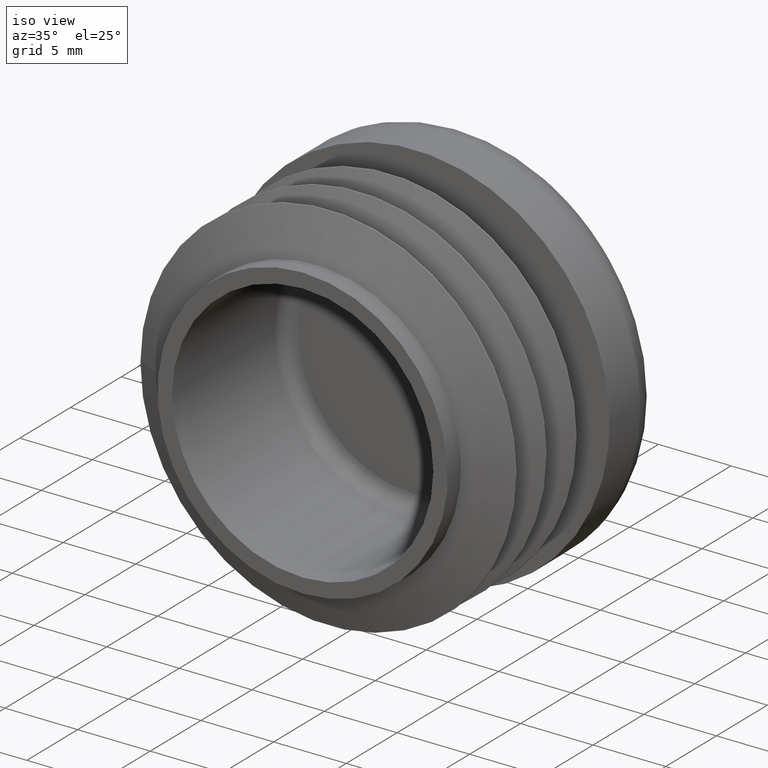
[diagram: clean part render]
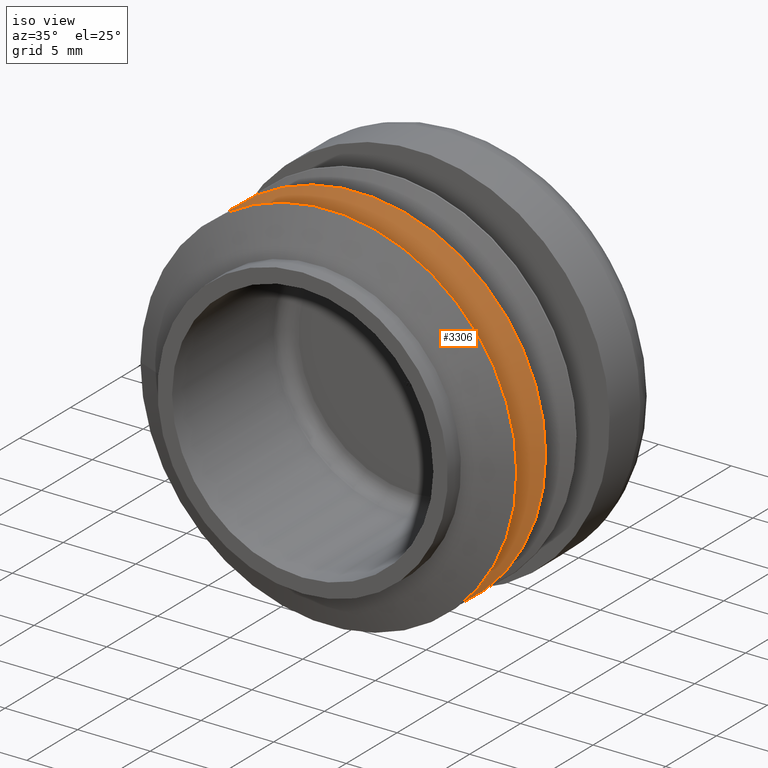
[diagram: same view with one face highlighted and labeled with its STEP entity id]
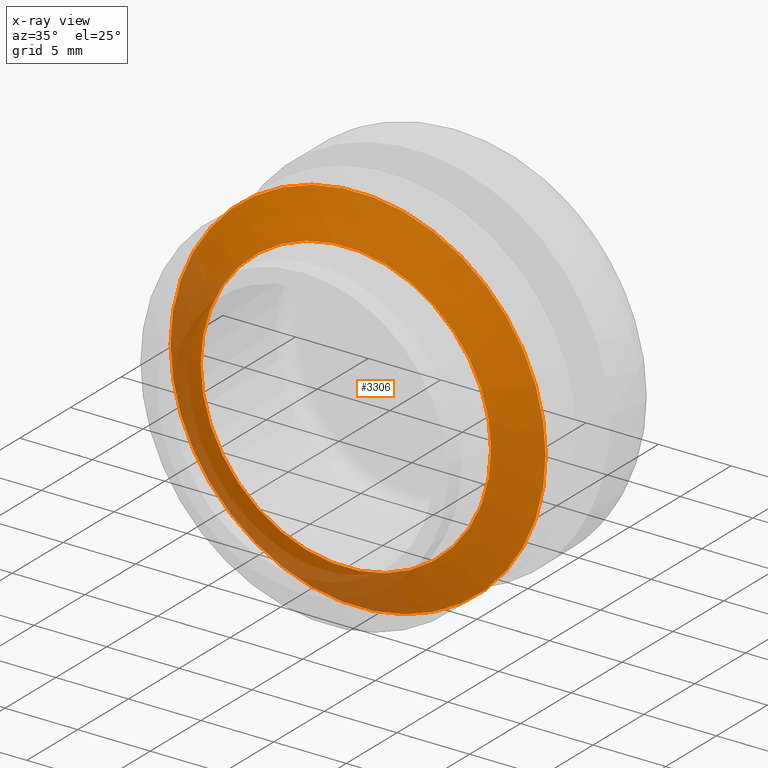
[diagram: x-ray of the same camera — body ghosted, the highlighted face saturated]
A machine part, iso view. The second image highlights one B-rep face of the part: STEP entity #3306.
The next image is the same camera in x-ray: the body ghosted, the highlighted face saturated — about 19% of this face is hidden behind the body in this view.
In plain terms, the highlighted conical surface has half-angle 67.59 deg.
Its self-contained STEP definition (entity closure, byte-faithful):
#222 = VERTEX_POINT ( 'NONE', #7177 ) ;
#786 = VERTEX_POINT ( 'NONE', #4400 ) ;
#1046 = ORIENTED_EDGE ( 'NONE', *, *, #1047, .T. ) ;
#1047 = EDGE_CURVE ( 'NONE', #786, #786, #4374, .T. ) ;
#2107 = DIRECTION ( 'NONE',  ( -1.047444401652940164E-14, 1.000000000000000000, 0.000000000000000000 ) ) ;
#2224 = DIRECTION ( 'NONE',  ( -1.000000000000000000, -1.049507702965960246E-14, 0.000000000000000000 ) ) ;
#2701 = AXIS2_PLACEMENT_3D ( 'NONE', #10531, #3756, #3976 ) ;
#3306 = ADVANCED_FACE ( 'NONE', ( #8757, #8617 ), #7798, .T. ) ;
#3756 = DIRECTION ( 'NONE',  ( 1.047444401652940164E-14, -1.000000000000000000, -0.000000000000000000 ) ) ;
#3976 = DIRECTION ( 'NONE',  ( 1.000000000000000000, 1.047354918337303050E-14, 0.000000000000000000 ) ) ;
#4374 = CIRCLE ( 'NONE', #2701, 12.91906198721974874 ) ;
#4400 = CARTESIAN_POINT ( 'NONE',  ( 12.91906198721969190, 5.453776189650538342, 0.000000000000000000 ) ) ;
#4735 = CARTESIAN_POINT ( 'NONE',  ( -4.451638707025015538E-14, 4.250000000000018652, 0.000000000000000000 ) ) ;
#5775 = DIRECTION ( 'NONE',  ( -1.047444401652940164E-14, 1.000000000000000000, 0.000000000000000000 ) ) ;
#6355 = EDGE_CURVE ( 'NONE', #222, #222, #8411, .T. ) ;
#6898 = EDGE_LOOP ( 'NONE', ( #10121 ) ) ;
#6973 = AXIS2_PLACEMENT_3D ( 'NONE', #4735, #2107, #2224 ) ;
#7177 = CARTESIAN_POINT ( 'NONE',  ( -10.00000000000004619, 4.249999999999882760, 0.000000000000000000 ) ) ;
#7231 = AXIS2_PLACEMENT_3D ( 'NONE', #8152, #5775, #10760 ) ;
#7798 = CONICAL_SURFACE ( 'NONE', #6973, 10.00000000000007638, 1.179659376938436033 ) ;
#8152 = CARTESIAN_POINT ( 'NONE',  ( -4.451638707024982722E-14, 4.249999999999987566, 0.000000000000000000 ) ) ;
#8411 = CIRCLE ( 'NONE', #7231, 10.00000000000000000 ) ;
#8617 = FACE_BOUND ( 'NONE', #6898, .T. ) ;
#8757 = FACE_OUTER_BOUND ( 'NONE', #8770, .T. ) ;
#8770 = EDGE_LOOP ( 'NONE', ( #1046 ) ) ;
#10121 = ORIENTED_EDGE ( 'NONE', *, *, #6355, .T. ) ;
#10531 = CARTESIAN_POINT ( 'NONE',  ( -5.712527337717418116E-14, 5.453776189650402451, 0.000000000000000000 ) ) ;
#10760 = DIRECTION ( 'NONE',  ( -1.000000000000000000, -1.049507702965968292E-14, 0.000000000000000000 ) ) ;